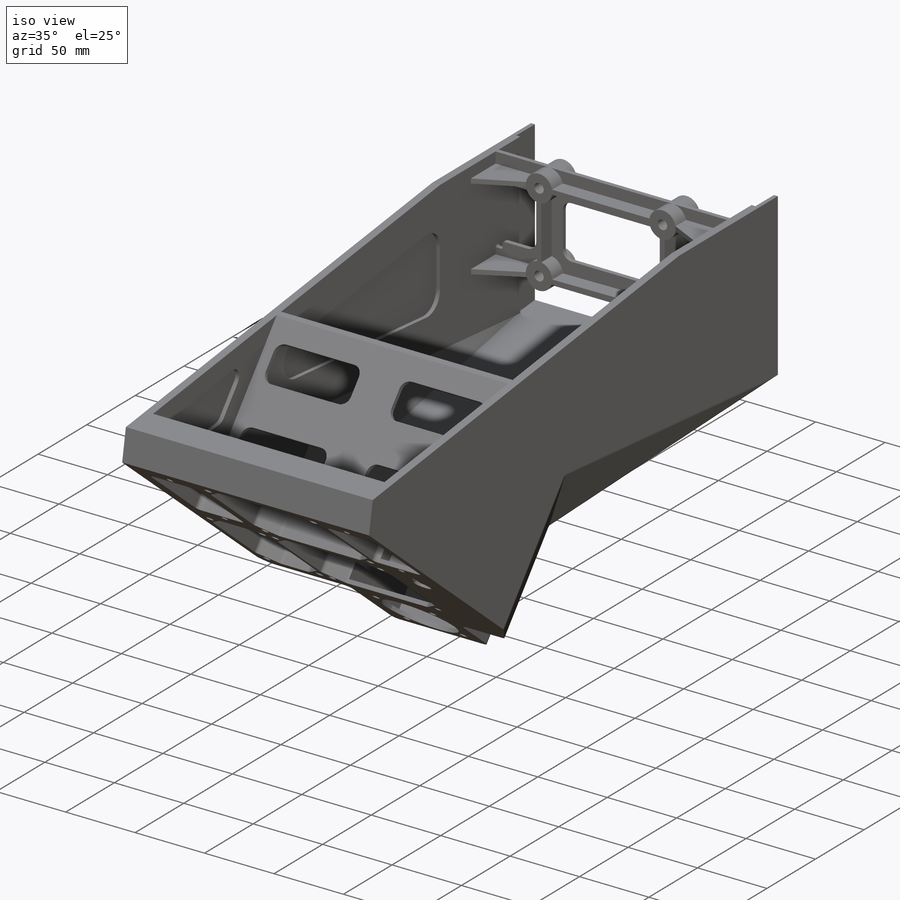
[diagram: iso view]
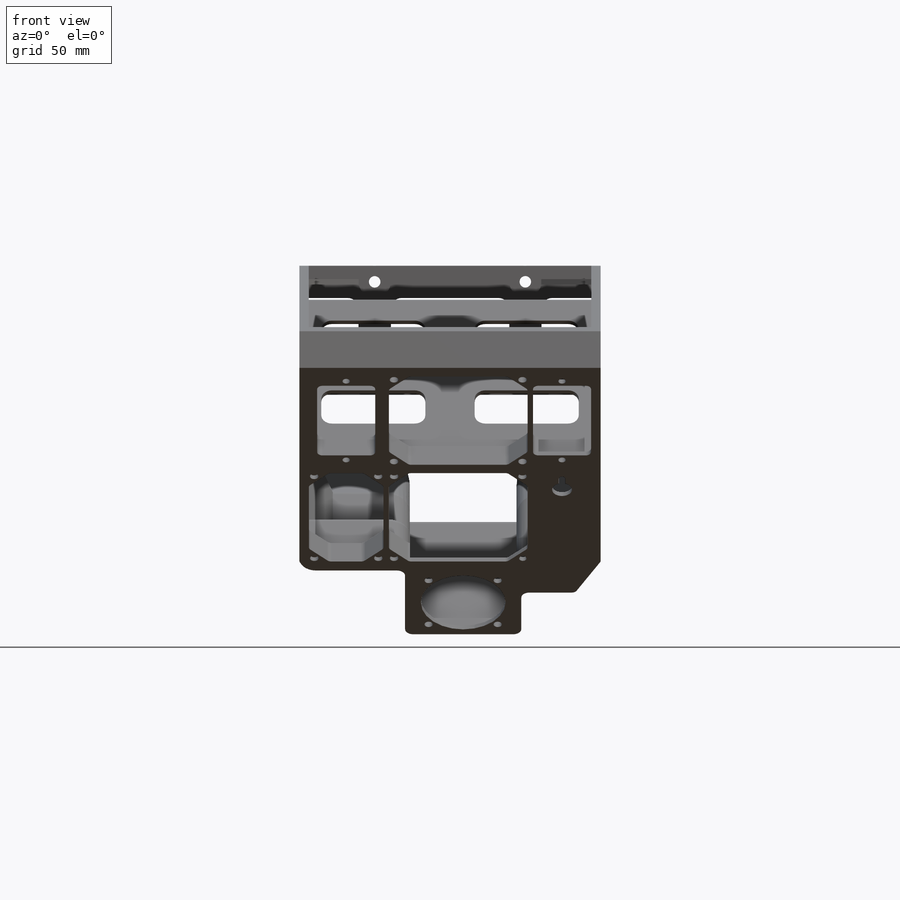
[diagram: front view]
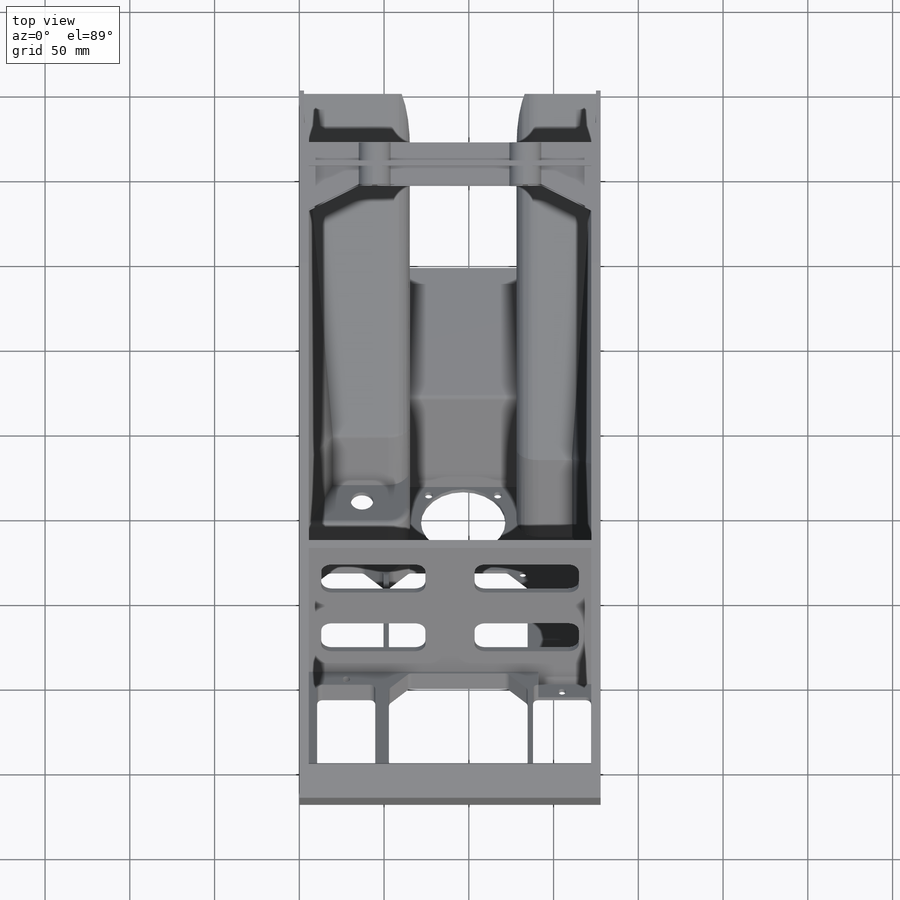
[diagram: top view]
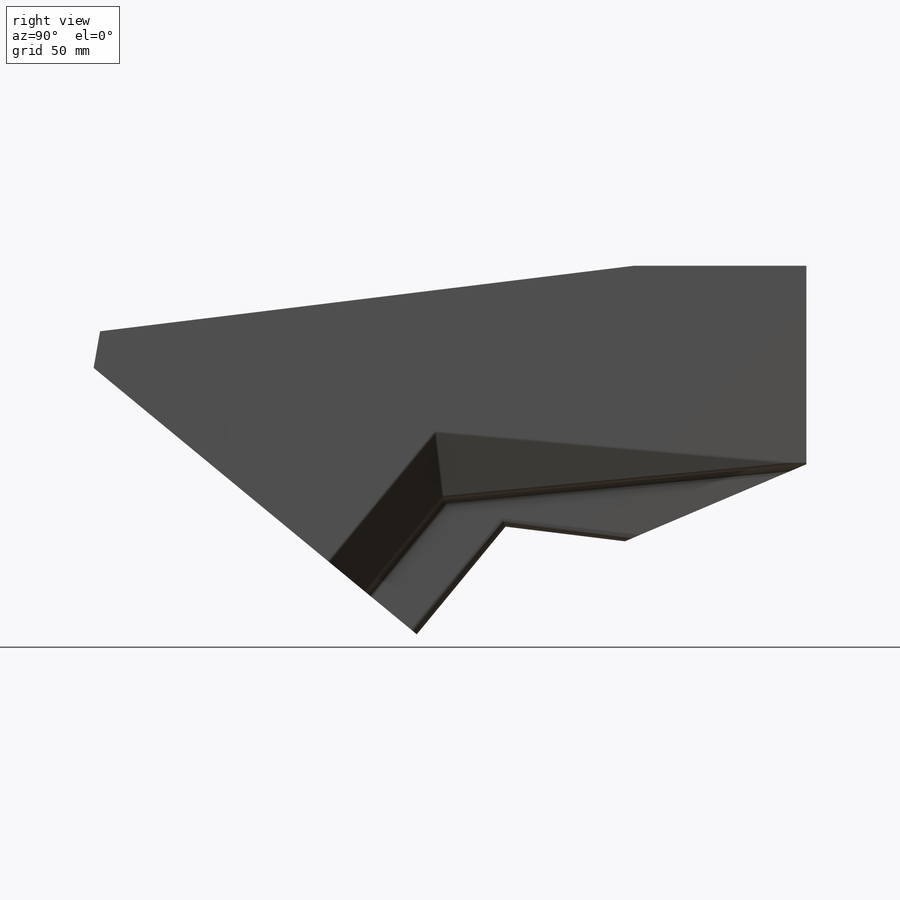
[diagram: right view]
SOLIDWORKS PART (.sldprt)
format: sldprt  version: not decoded by parser v0  size: 1,754,112 bytes
history: native  units: mm
features: sketch x46, extrude x19, cut_extrude x13, fillet x8, plane x3, material x1, shell x1, hole x1 (+16 scaffold rows collapsed)
feature tree (108):
  scaffold x16  (default folders/planes/origin — collapsed)
  material  "Material <not specified>"
  sketch  "Sketch1"  dims[D1=177.8mm D2=117.1448mm]
  extrude  "Extrude1"  Depth=101.6mm
  sketch  "3DSketch1"  dims[c1.D1=101.6mm c2.D1=~176.352197deg c3.D1=~143.943851mm c4.D1=5.5deg]
  sketch  "Sketch2"  dims[D1=0.0mm]
  extrude  "Extrude2"  Depth=228.6mm
  sketch  "3DSketch2"  dims[c1.D1=101.6mm c2.D1=187.0deg]
  sketch  "Sketch3"  dims[D1=0.0mm]
  extrude  "Extrude3"  Depth=317.5mm
  sketch  "Sketch4"  dims[c1.D1=~74.998497mm c2.D1=~35.847304deg c3.D1=~74.998497mm c4.D1=10.0deg c5.D1=~74.998497mm c6.D1=197.0deg c7.D1=~74.998497mm c8.D1=10.0deg c8.D2=21.59mm]
  extrude  "Extrude4"  [1 undecoded]
  sketch  "Main Surface Plane 3D Sketch Ref"  dims[c1.D1=~160.260808mm c1.D2=~160.260808mm c2.D1=~160.260808mm c3.D1=39.5deg]
  plane  "Main Surface Plane"
  sketch  "Sketch5"  dims[D1=187.96mm D2=62.3824mm D3=68.58mm D4=59.1312mm D5=219.202mm]
  extrude  "Extrude5"  [1 undecoded]
  cut_extrude  "Extrude6"  [1 undecoded]
  sketch  "Sketch5<2>"  dims[D1=317.5mm]
  sketch  "Sketch6"  dims[D1=30.226mm]
  extrude  "Extrude7"  [1 undecoded]
  cut_extrude  "Extrude8"  [1 undecoded]
  sketch  "Sketch6<2>"  dims[D1=35.56mm]
  sketch  "Sketch12"  dims[D1=31.75mm]
  sketch  "Sketch13"  dims[c1.D1=~27.623173mm c2.D1=67.5deg]
  sketch  "Sketch9"  dims[c1.D1=~192.014646mm c2.D1=83.0deg c2.D2=~158.87986mm c3.D2=67.0deg c3.D3=117.1448mm c4.D3=22.5deg c4.D4=~303.719988mm c5.D4=85.0deg]
  sketch  "Sketch33"  dims[D1=8.382mm D2=44.45mm]
  sketch  "Sketch7"  dims[c1.D2=~78.397058mm c1.D1=82.296mm c2.D2=0.0mm]
  extrude  "Extrude9"  [1 undecoded]
  sketch  "Sketch10"
  cut_extrude  "Extrude10"  [1 undecoded]
  sketch  "3DSketch6"
  cut_extrude  "Extrude13"  [1 undecoded]
  sketch  "3DSketch7"
  cut_extrude  "Extrude14"  [1 undecoded]
  plane  "Plane4"
  sketch  "Sketch34"  dims[D1=0.0mm D2=0.0mm]
  sketch  "Sketch35"
  sketch  "3DSketch12"
  sketch  "3DSketch11"
  cut_extrude  "Extrude30"  [1 undecoded]
  cut_extrude  "Extrude33"  [1 undecoded]
  shell  "Shell2"  Thickness=2.794mm
  sketch  "Sketch14"  dims[D1=89.662mm]
  plane  "Internal Support Plane"
  sketch  "3DSketch10"
  sketch  "Sketch27"  dims[c1.D5=12.7mm c1.D8=6.35mm c1.D9=6.35mm c1.D12=6.35mm c1.D13=6.35mm c1.D2=6.35mm c1.D7=~95.576467mm c2.D7=45.0deg c2.D1=0.0mm c2.D2=25.4mm c2.D3=101.6mm c2.D4=25.4mm c2.D6=19.05mm c3.D1=0.0mm c3.D2=19.05mm c4.D1=19.05mm c4.D2=12.7mm c4.D3=12.7mm c4.D4=0.0mm c4.D6=45.72mm c4.D10=12.7mm c4.D11=12.7mm]
  extrude  "Extrude24"  Depth=2.794mm
  sketch  "Sketch15"  dims[D9=6.35mm D1=10.16mm D2=10.16mm D3=61.3918mm D4=61.3918mm D5=15.24mm D6=25.4mm D7=27.94mm D8=25.4mm]
  extrude  "Extrude15"  Depth=3.175mm
  sketch  "Sketch16"
  extrude  "Extrude16"  [1 undecoded]
  sketch  "Sketch30"  dims[D1=0.0mm D2=0.0mm D3=0.0mm D4=0.0mm]
  extrude  "Extrude25"  Depth=2.794mm
  sketch  "Sketch17"  dims[D1=44.45mm D2=3.175mm]
  extrude  "Extrude17"  Depth=76.2mm
  sketch  "Sketch18"  dims[D7=6.35mm D8=6.35mm D11=1.27mm D12=1.27mm D13=1.27mm D1=19.05mm D2=19.05mm D3=34.925mm D4=34.925mm D5=19.05mm D6=19.05mm D9=5.08mm D10=5.08mm]
  cut_extrude  "Extrude18"  [1 undecoded]
  sketch  "Sketch19"  dims[D1=9.525mm]
  extrude  "Extrude19"  Depth=10.7442mm
  sketch  "Sketch22"  dims[c1.D1=~2.47015mm c1.D2=~2.47015mm c1.D3=1.5875mm c1.D4=1.5875mm c2.D1=1.5875mm c2.D2=1.5875mm c2.D3=1.6383mm c2.D4=1.6383mm c2.D5=0.0mm c2.D6=0.0mm c2.D7=0.0mm c2.D8=0.0mm]
  extrude  "Extrude20"  [1 undecoded]
  sketch  "Sketch23"  dims[D1=6.7945mm]
  cut_extrude  "Extrude21"  [1 undecoded]
  sketch  "Sketch24"  dims[D1=25.4mm]
  extrude  "Extrude22"  [1 undecoded]
  sketch  "Sketch25"  dims[D1=25.4mm]
  extrude  "Extrude23"  [1 undecoded]
  sketch  "Sketch36"  dims[D1=17.272mm]
  extrude  "Extrude34"  Depth=2.794mm
  sketch  "Sketch37"  dims[c1.D1=50.038mm c1.D3=4.8768mm c1.D2=57.6199mm c2.D3=4.8768mm c2.D2=29.21mm]
  cut_extrude  "Air Vent Cut Out"  [1 undecoded]
  sketch  "Sketch38"  dims[c1.D3=3.175mm c1.D4=107.95mm c1.D5=4.3942mm c1.D8=11.811mm c1.D24=3.175mm c1.D27=4.3815mm c1.D28=4.3815mm c1.D7=4.3815mm c1.D9=4.3815mm c2.D3=11.938mm c2.D1=11.938mm c3.D3=11.938mm c3.D19=~97.469664mm c4.D3=34.2646mm c4.D1=8.5344mm c4.D2=40.9321mm c5.D3=40.9321mm c5.D4=81.8642mm c5.D5=3.175mm c5.D6=43.942mm c5.D2=5.6134mm c6.D3=44.069mm c6.D5=3.175mm c6.D6=81.8388mm c6.D7=3.175mm c6.D8=34.2646mm c6.D9=16.383mm c6.D10=64.5922mm c6.D11=7.6708mm c6.D12=81.8642mm c7.D7=31.75mm c7.D19=1.905mm c7.D20=1.905mm c7.D21=10.16mm c7.D22=17.1323mm c7.D23=17.1323mm c7.D24=32.2961mm c7.D25=36.5125mm c7.D26=36.5125mm c7.D1=36.5125mm c7.D3=36.5125mm]
  cut_extrude  "Main Instrutment Cut Out"  [1 undecoded]
  sketch  "Sketch39"  dims[D2=13.335mm D1=25.4mm]
  cut_extrude  "Rudder Adjustment Cut Out"  [1 undecoded]
  fillet  "Fillet1"  Radius=4.7625mm
  fillet  "Fillet2"  Radius=9.525mm
  fillet  "Fillet3"  Radius=3.175mm
  fillet  "Fillet4"  Radius=3.175mm
  fillet  "Fillet5"  Radius=4.7625mm
  fillet  "Fillet6"  Radius=3.175mm
  fillet  "Fillet7"  Radius=12.7mm
  fillet  "Fillet8"  Radius=3.175mm
  sketch  "Sketch44"  dims[D1=0.0mm D2=0.0mm D3=0.0mm D4=0.0mm D5=0.0mm D6=0.0mm D7=0.0mm D8=0.0mm]
  extrude  "Main Instrument Back Reinforcement Upper"  Depth=11.303mm
  hole  "Main Instrument Tapped Screw Holes"  Diameter=5.0546mm Depth=11.43mm
  sketch  "3DSketch14"  dims[D1=53.6194mm D2=53.6194mm D3=53.6194mm D4=53.6194mm D5=53.6194mm D6=53.6194mm D7=53.6194mm D8=~18.89125mm D9=~18.89125mm D10=~18.89125mm D11=~18.89125mm]
  sketch  "Sketch41"  dims[hole-wizard template sketch: 47 standard entries collapsed; hole parameters kept: c15.Hole Depth=11.43mm c15.D3=~14.816244mm c15.Drill Angle=118.0deg]
  sketch  "Sketch45"  dims[c1.D1=0.0mm c1.D2=0.0mm c1.D3=1.27mm c1.D4=0.0mm c1.D5=0.0mm c1.D6=2.54mm c2.D1=0.254mm c2.D5=0.0mm]
  extrude  "Main Instrument Back Reinforcement Lower"  Depth=11.303mm
  sketch  "Sketch47"  dims[D1=0.0mm D2=0.0mm D3=0.0mm D4=0.0mm D5=0.0mm]
  cut_extrude  "Main Instrument Non-Tapped Screw Holes"  [1 undecoded]
  sketch  "Sketch11"  dims[c1.D1=0.0mm c1.D7=13.0mm c2.D1=11.938mm c2.D5=11.938mm c2.D8=11.938mm c2.D9=11.938mm c2.D11=11.938mm c2.D12=11.938mm c2.D13=11.938mm c2.D14=11.938mm c2.D15=11.938mm c2.D16=11.938mm c2.D17=11.938mm c2.D18=11.938mm]
decode coverage: 59 of 88 modeling features carry decoded parameters
note: ~ marks probable driven/reference dimensions
note: 21 parameter values undecoded
summary: no parameter record found for 21 features
note: suppression state not decoded; provenance and decode notes live in map.json
